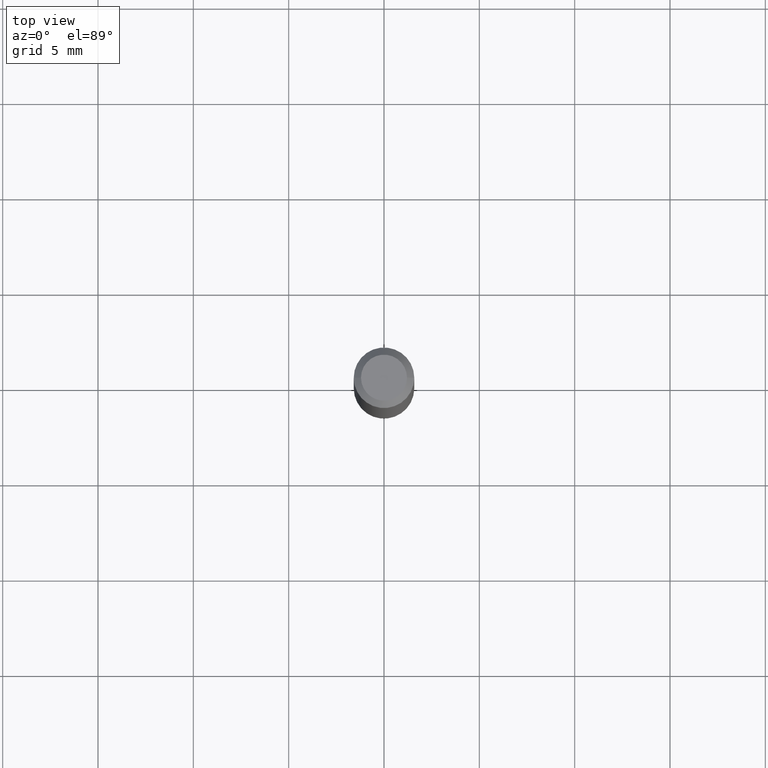
[diagram: clean part render]
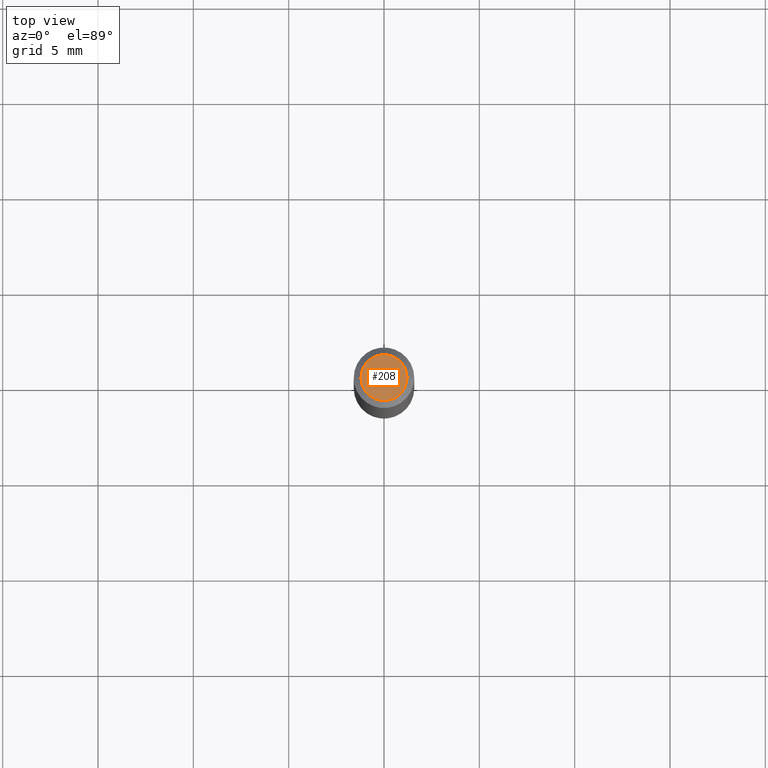
[diagram: same view with one face highlighted and labeled with its STEP entity id]
A machine part, top view. The second image highlights one B-rep face of the part: STEP entity #208.
In plain terms, the highlighted planar face has unit normal (0, -0, -1).
Its self-contained STEP definition (entity closure, byte-faithful):
#41 = CARTESIAN_POINT ( 'NONE',  ( -1.537852810144857008E-44, 2.195646239660832005E-30, 6.288580767234829712E-16 ) ) ;
#43 = AXIS2_PLACEMENT_3D ( 'NONE', #220, #158, #257 ) ;
#45 = PLANE ( 'NONE',  #43 ) ;
#54 = ORIENTED_EDGE ( 'NONE', *, *, #216, .T. ) ;
#61 = CIRCLE ( 'NONE', #372, 0.04749999999999999362 ) ;
#111 = VERTEX_POINT ( 'NONE', #240 ) ;
#121 = EDGE_LOOP ( 'NONE', ( #54, #221 ) ) ;
#158 = DIRECTION ( 'NONE',  ( 2.438088387897960049E-29, -3.491481338843145188E-15, -1.000000000000000000 ) ) ;
#199 = CIRCLE ( 'NONE', #464, 0.04749999999999999362 ) ;
#208 = ADVANCED_FACE ( 'NONE', ( #403 ), #45, .F. ) ;
#216 = EDGE_CURVE ( 'NONE', #111, #420, #61, .T. ) ;
#220 = CARTESIAN_POINT ( 'NONE',  ( 3.316907271900976096E-16, 0.04749999999999999362, 1.485836747666920892E-16 ) ) ;
#221 = ORIENTED_EDGE ( 'NONE', *, *, #444, .T. ) ;
#240 = CARTESIAN_POINT ( 'NONE',  ( -0.04749999999999999362, 3.578768372314221353E-16, 6.288580767234806046E-16 ) ) ;
#257 = DIRECTION ( 'NONE',  ( -1.000000000000000000, 6.982962677686265922E-15, -4.876176775795935793E-29 ) ) ;
#296 = DIRECTION ( 'NONE',  ( 1.000000000000000000, -6.982962677686267499E-15, 4.852736867747366768E-29 ) ) ;
#305 = CARTESIAN_POINT ( 'NONE',  ( -1.537852810144857008E-44, 2.195646239660832005E-30, 6.288580767234829712E-16 ) ) ;
#372 = AXIS2_PLACEMENT_3D ( 'NONE', #41, #407, #296 ) ;
#403 = FACE_OUTER_BOUND ( 'NONE', #121, .T. ) ;
#407 = DIRECTION ( 'NONE',  ( -2.445468806185136597E-29, 3.491481338843145583E-15, 1.000000000000000000 ) ) ;
#420 = VERTEX_POINT ( 'NONE', #461 ) ;
#421 = DIRECTION ( 'NONE',  ( 1.000000000000000000, -6.982962677686267499E-15, 4.852736867747366768E-29 ) ) ;
#430 = DIRECTION ( 'NONE',  ( -2.445468806185136597E-29, 3.491481338843145583E-15, 1.000000000000000000 ) ) ;
#444 = EDGE_CURVE ( 'NONE', #420, #111, #199, .T. ) ;
#461 = CARTESIAN_POINT ( 'NONE',  ( 0.04749999999999999362, -4.035134999187567283E-16, 6.288580767234855350E-16 ) ) ;
#464 = AXIS2_PLACEMENT_3D ( 'NONE', #305, #430, #421 ) ;